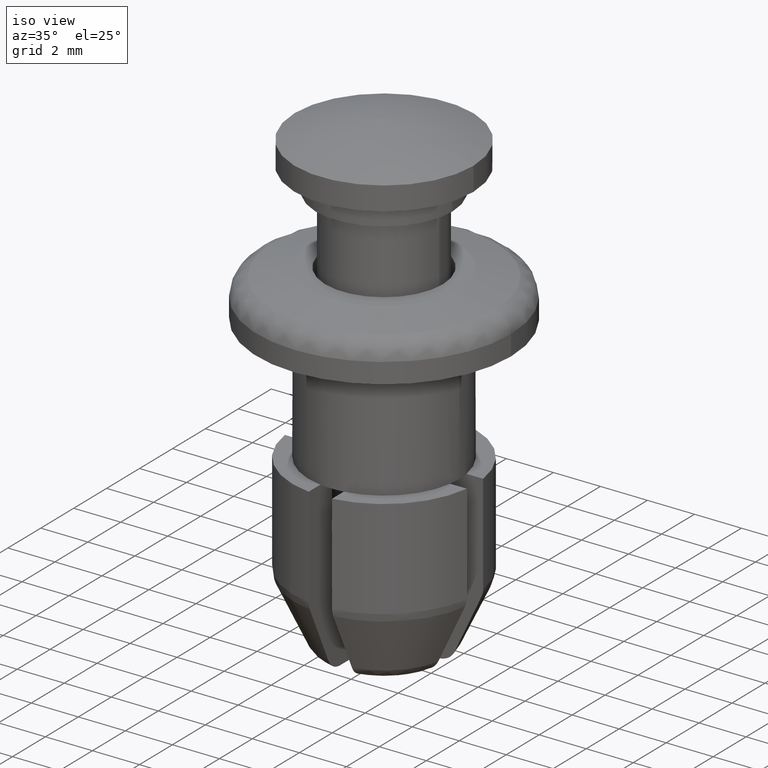
[diagram: clean part render]
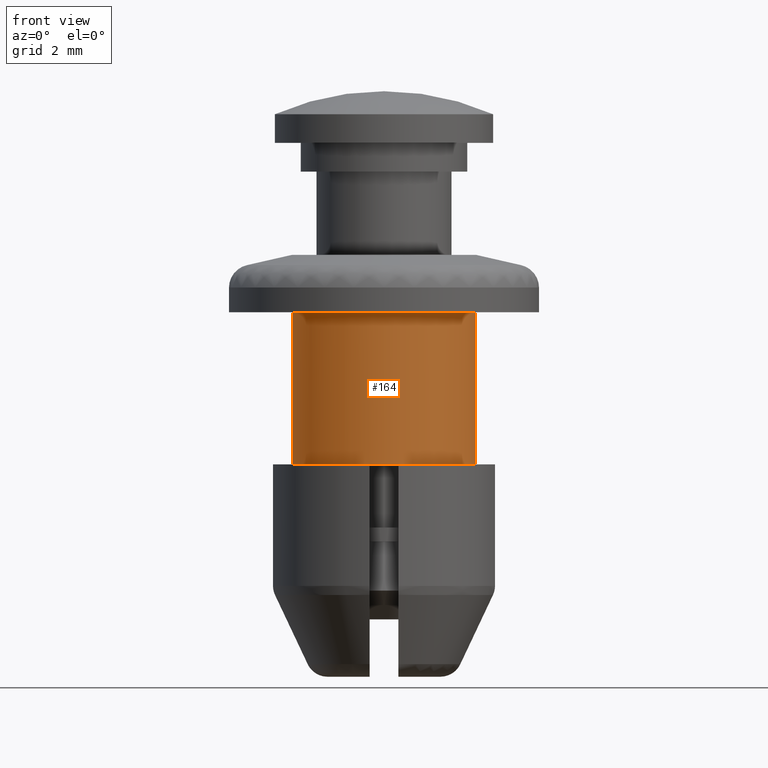
[diagram: tour spotlight — one face highlighted and labeled with its STEP entity id]
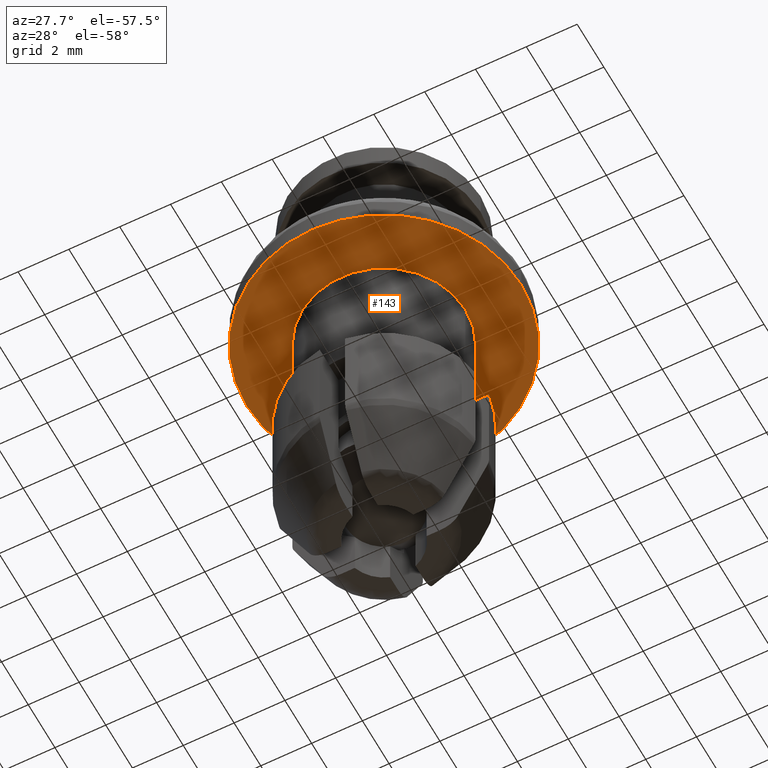
[diagram: tour spotlight — one face highlighted and labeled with its STEP entity id]
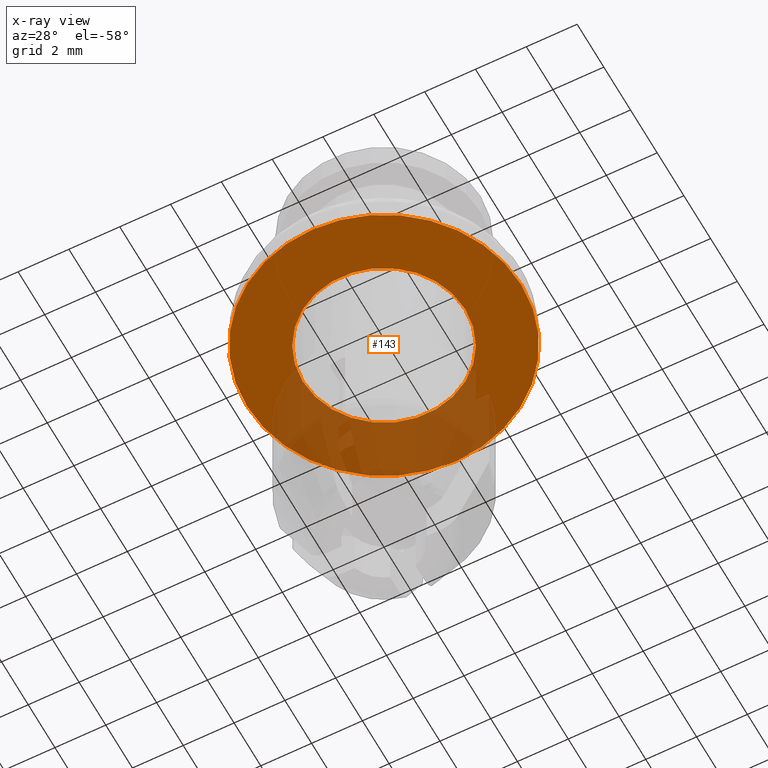
[diagram: x-ray of the same camera — body ghosted, this tour face saturated]
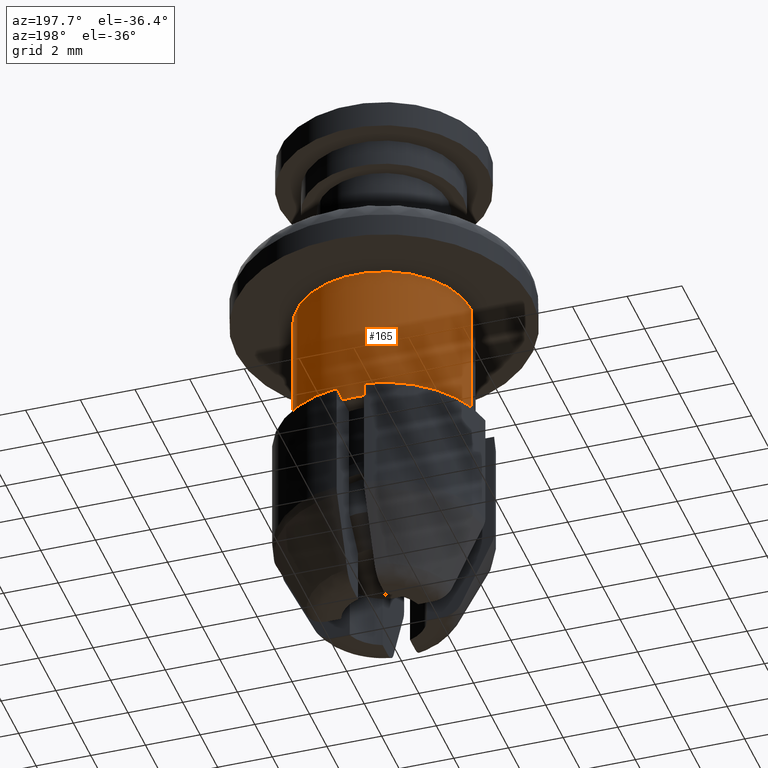
[diagram: tour spotlight — one face highlighted and labeled with its STEP entity id]
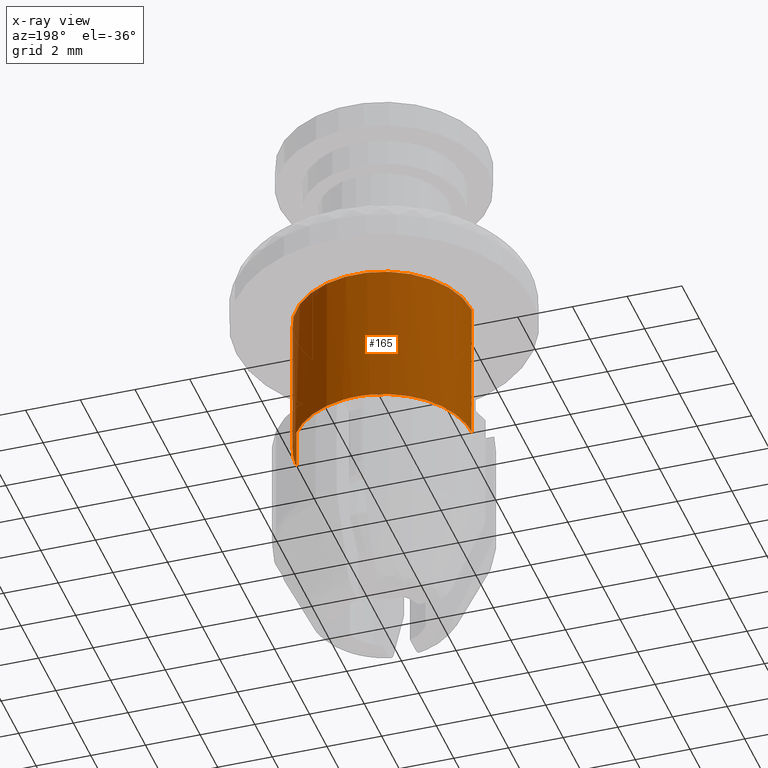
[diagram: x-ray of the same camera — body ghosted, this tour face saturated]
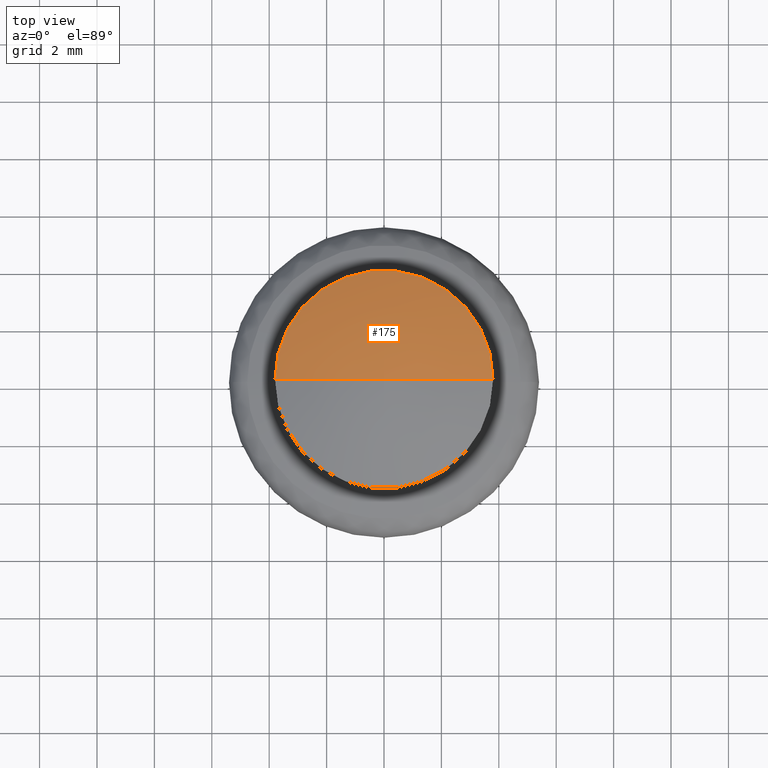
[diagram: tour spotlight — one face highlighted and labeled with its STEP entity id]
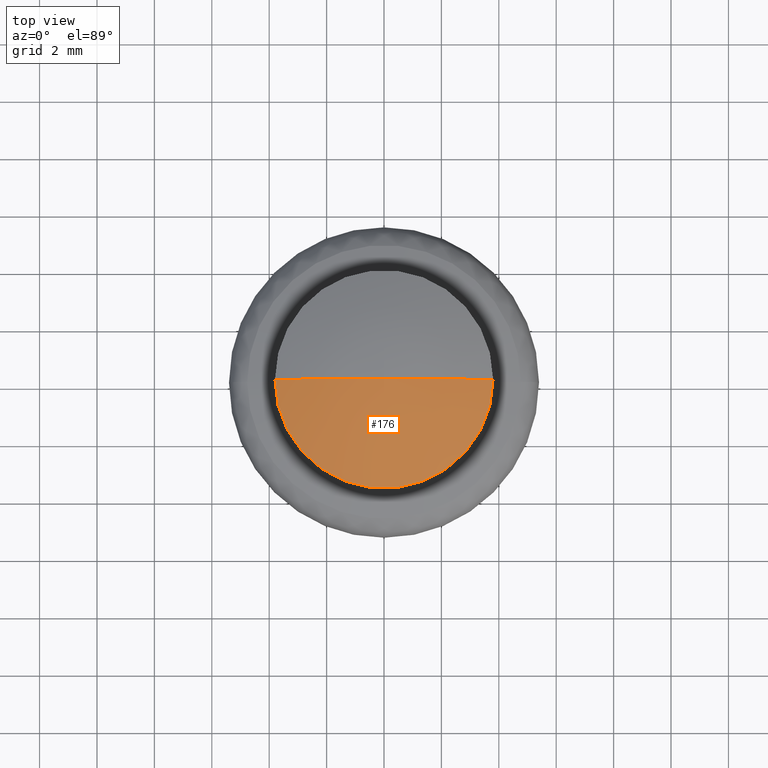
[diagram: tour spotlight — one face highlighted and labeled with its STEP entity id]
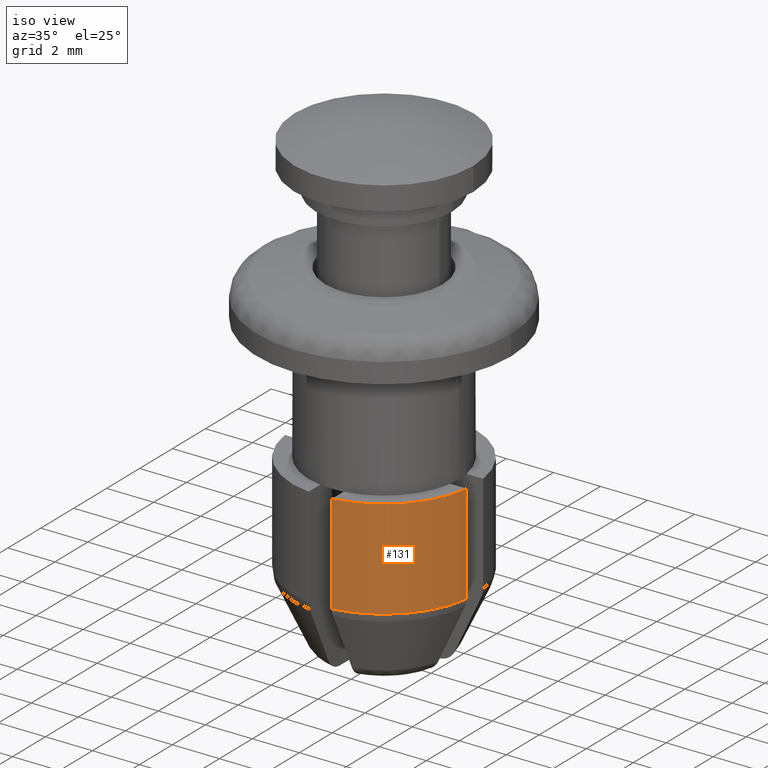
[diagram: tour spotlight — one face highlighted and labeled with its STEP entity id]
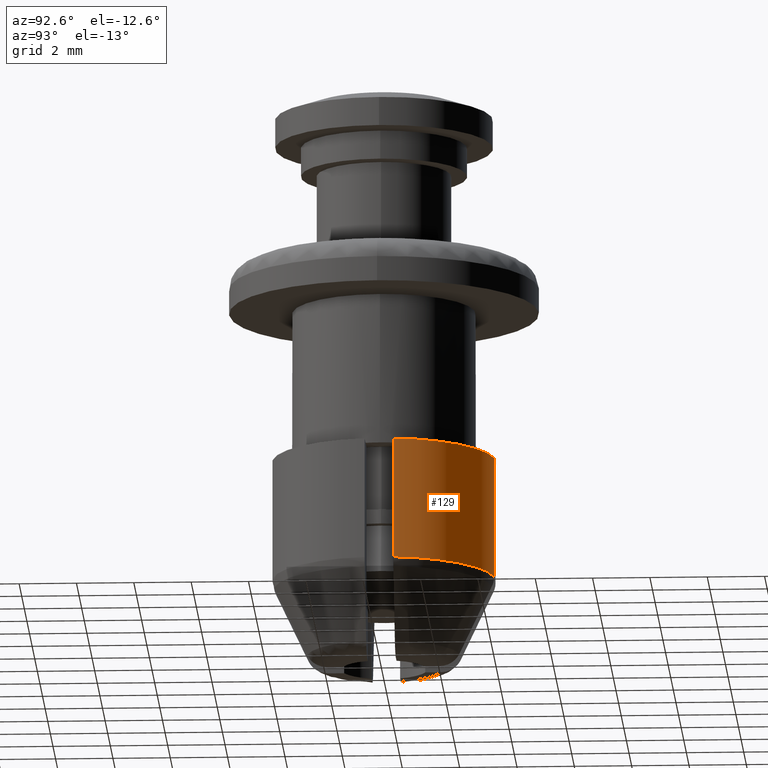
[diagram: tour spotlight — one face highlighted and labeled with its STEP entity id]
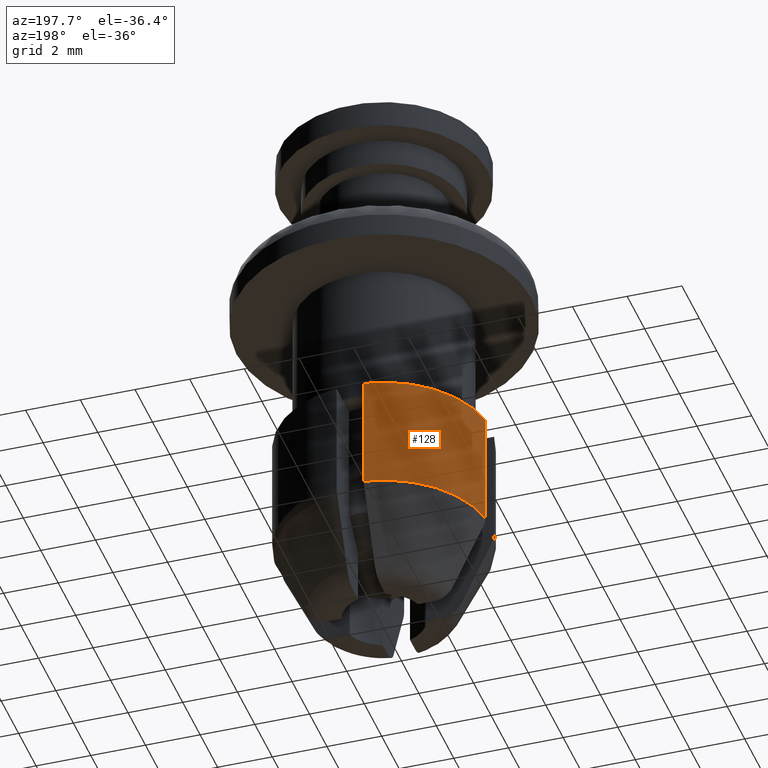
[diagram: tour spotlight — one face highlighted and labeled with its STEP entity id]
A machine part: a face-by-face anatomy tour. The part has 79 B-rep faces; the first image is the clean iso view, then the 8 largest visible faces are spotlighted one at a time (largest first), each with its STEP entity span.

Face 1 — front view, entity #164. In plain terms, the highlighted cylindrical surface (partial cylindrical patch) has radius 3.2 mm, axis along (-0, -0, -1).
Definition (entity closure, byte-faithful):
#164=ADVANCED_FACE('',(#714),#713,.T.);
#713=CYLINDRICAL_SURFACE('',#1386,3.20000000000E+00);
#714=FACE_OUTER_BOUND('',#1387,.T.);
#1383=CARTESIAN_POINT('',(-1.97215226305E-31,0.00000000000E+00,-1.00200000000E+03));
#1384=DIRECTION('',(-0.00000000000E+00,-0.00000000000E+00,-1.00000000000E+00));
#1385=DIRECTION('',(1.00000000000E+00,1.22464679915E-16,0.00000000000E+00));
#1386=AXIS2_PLACEMENT_3D('',#1383,#1384,#1385);
#1387=EDGE_LOOP('',(#1834,#1835,#1836,#1837,#1838,#1839,#1840,#1841));
#1834=ORIENTED_EDGE('',*,*,#2072,.T.);
#1835=ORIENTED_EDGE('',*,*,#1988,.T.);
#1836=ORIENTED_EDGE('',*,*,#2067,.T.);
#1837=ORIENTED_EDGE('',*,*,#2003,.T.);
#1838=ORIENTED_EDGE('',*,*,#2058,.T.);
#1839=ORIENTED_EDGE('',*,*,#2092,.F.);
#1840=ORIENTED_EDGE('',*,*,#2046,.F.);
#1841=ORIENTED_EDGE('',*,*,#2093,.T.);
#1988=EDGE_CURVE('',#2148,#2279,#2428,.T.);
#2003=EDGE_CURVE('',#2532,#2525,#2533,.T.);
#2046=EDGE_CURVE('',#2816,#2817,#2818,.T.);
#2058=EDGE_CURVE('',#2525,#2889,#2896,.T.);
#2067=EDGE_CURVE('',#2279,#2532,#2953,.T.);
#2072=EDGE_CURVE('',#2985,#2148,#2986,.T.);
#2092=EDGE_CURVE('',#2817,#2889,#3112,.T.);
#2093=EDGE_CURVE('',#2816,#2985,#3118,.T.);
#2148=VERTEX_POINT('',#3432);
#2279=VERTEX_POINT('',#3526);
#2428=CIRCLE('',#3628,3.20000000000E+00);
#2525=VERTEX_POINT('',#3688);
#2532=VERTEX_POINT('',#3692);
#2533=CIRCLE('',#3696,3.20000000000E+00);
#2816=VERTEX_POINT('',#3907);
#2817=VERTEX_POINT('',#3908);
#2818=CIRCLE('',#3912,3.20000000000E+00);
#2889=VERTEX_POINT('',#3951);
#2896=CIRCLE('',#3959,3.20000000000E+00);
#2953=CIRCLE('',#3994,3.20000000000E+00);
#2985=VERTEX_POINT('',#4011);
#2986=CIRCLE('',#4015,3.20000000000E+00);
#3112=(BOUNDED_CURVE() B_SPLINE_CURVE(1,(#4083,#4084),.UNSPECIFIED.,.F.,.F.) B_SPLINE_CURVE_WITH_KNOTS((2,2),(8.33333283663E-02,9.16666663731E-01),.UNSPECIFIED.) CURVE() GEOMETRIC_REPRESENTATION_ITEM() RATIONAL_B_SPLINE_CURVE((1.00000000000E+00,1.00000000000E+00)) REPRESENTATION_ITEM('') );
#3118=(BOUNDED_CURVE() B_SPLINE_CURVE(1,(#4085,#4086),.UNSPECIFIED.,.F.,.F.) B_SPLINE_CURVE_WITH_KNOTS((2,2),(8.33333333333E-02,9.16666666667E-01),.UNSPECIFIED.) CURVE() GEOMETRIC_REPRESENTATION_ITEM() RATIONAL_B_SPLINE_CURVE((7.50000000000E-01,7.50000000000E-01)) REPRESENTATION_ITEM('') );
#3432=CARTESIAN_POINT('',(-3.16069612586E+00,-5.00000000000E-01,-7.30000000000E+00));
#3526=CARTESIAN_POINT('',(-5.00000000000E-01,-3.16069612586E+00,-7.30000000000E+00));
#3625=CARTESIAN_POINT('',(-1.97215226305E-31,0.00000000000E+00,-7.30000000000E+00));
#3626=DIRECTION('',(0.00000000000E+00,-0.00000000000E+00,1.00000000000E+00));
#3627=DIRECTION('',(1.00000000000E+00,-0.00000000000E+00,-0.00000000000E+00));
#3628=AXIS2_PLACEMENT_3D('',#3625,#3626,#3627);
#3688=CARTESIAN_POINT('',(3.16069612586E+00,-5.00000000000E-01,-7.30000000000E+00));
#3692=CARTESIAN_POINT('',(5.00000000000E-01,-3.16069612586E+00,-7.30000000000E+00));
#3693=CARTESIAN_POINT('',(-1.97215226305E-31,0.00000000000E+00,-7.30000000000E+00));
#3694=DIRECTION('',(0.00000000000E+00,-0.00000000000E+00,1.00000000000E+00));
#3695=DIRECTION('',(1.00000000000E+00,-0.00000000000E+00,-0.00000000000E+00));
#3696=AXIS2_PLACEMENT_3D('',#3693,#3694,#3695);
#3907=CARTESIAN_POINT('',(-3.20000000000E+00,0.00000000000E+00,-2.00000000000E+00));
#3908=CARTESIAN_POINT('',(3.20000000000E+00,4.44089209850E-16,-2.00000000000E+00));
#3909=CARTESIAN_POINT('',(-1.97215226305E-31,0.00000000000E+00,-2.00000000000E+00));
#3910=DIRECTION('',(0.00000000000E+00,0.00000000000E+00,1.00000000000E+00));
#3911=DIRECTION('',(-1.00000000000E+00,-1.22460635382E-16,0.00000000000E+00));
#3912=AXIS2_PLACEMENT_3D('',#3909,#3910,#3911);
#3951=CARTESIAN_POINT('',(3.20000000000E+00,5.64127061660E-15,-7.30000000000E+00));
#3956=CARTESIAN_POINT('',(-1.97215226305E-31,0.00000000000E+00,-7.30000000000E+00));
#3957=DIRECTION('',(-0.00000000000E+00,0.00000000000E+00,1.00000000000E+00));
#3958=DIRECTION('',(9.87717539330E-01,1.56250000000E-01,0.00000000000E+00));
#3959=AXIS2_PLACEMENT_3D('',#3956,#3957,#3958);
#3991=CARTESIAN_POINT('',(-1.97215226305E-31,0.00000000000E+00,-7.30000000000E+00));
#3992=DIRECTION('',(0.00000000000E+00,-0.00000000000E+00,1.00000000000E+00));
#3993=DIRECTION('',(1.00000000000E+00,-0.00000000000E+00,-0.00000000000E+00));
#3994=AXIS2_PLACEMENT_3D('',#3991,#3992,#3993);
#4011=CARTESIAN_POINT('',(-3.20000000000E+00,3.19635721834E-06,-7.30000000000E+00));
#4012=CARTESIAN_POINT('',(-1.97215226305E-31,0.00000000000E+00,-7.30000000000E+00));
#4013=DIRECTION('',(0.00000000000E+00,-0.00000000000E+00,1.00000000000E+00));
#4014=DIRECTION('',(1.00000000000E+00,-0.00000000000E+00,-0.00000000000E+00));
#4015=AXIS2_PLACEMENT_3D('',#4012,#4013,#4014);
#4083=CARTESIAN_POINT('',(3.20000000000E+00,3.91886975727E-16,-1.99999996841E+00));
#4084=CARTESIAN_POINT('',(3.20000000000E+00,3.91886975727E-16,-7.29999998133E+00));
#4085=CARTESIAN_POINT('',(-3.20000000000E+00,-2.96059473233E-16,-2.00000000000E+00));
#4086=CARTESIAN_POINT('',(-3.20000000000E+00,-2.96059473233E-16,-7.30000000000E+00));

Face 2 — auxiliary view, entity #143. An x-ray twin of the same camera follows (body ghosted, this face saturated) — the face is partly hidden behind the body. In plain terms, the highlighted planar face has unit normal (0, 0, 1).
Definition (entity closure, byte-faithful):
#143=ADVANCED_FACE('',(#503,#504),#502,.F.);
#502=PLANE('',#1224);
#503=FACE_OUTER_BOUND('',#1225,.T.);
#504=FACE_BOUND('',#1226,.T.);
#1221=CARTESIAN_POINT('',(-7.02000000000E+00,-1.12236892330E+01,-2.00000000000E+00));
#1222=DIRECTION('',(0.00000000000E+00,0.00000000000E+00,1.00000000000E+00));
#1223=DIRECTION('',(1.00000000000E+00,0.00000000000E+00,0.00000000000E+00));
#1224=AXIS2_PLACEMENT_3D('',#1221,#1222,#1223);
#1225=EDGE_LOOP('',(#1694,#1695));
#1226=EDGE_LOOP('',(#1696,#1697));
#1694=ORIENTED_EDGE('',*,*,#2044,.T.);
#1695=ORIENTED_EDGE('',*,*,#2045,.T.);
#1696=ORIENTED_EDGE('',*,*,#2046,.T.);
#1697=ORIENTED_EDGE('',*,*,#2047,.T.);
#2044=EDGE_CURVE('',#2802,#2803,#2804,.T.);
#2045=EDGE_CURVE('',#2803,#2802,#2810,.T.);
#2046=EDGE_CURVE('',#2816,#2817,#2818,.T.);
#2047=EDGE_CURVE('',#2817,#2816,#2824,.T.);
#2802=VERTEX_POINT('',#3897);
#2803=VERTEX_POINT('',#3898);
#2804=CIRCLE('',#3902,5.40000000000E+00);
#2810=CIRCLE('',#3906,5.40000000000E+00);
#2816=VERTEX_POINT('',#3907);
#2817=VERTEX_POINT('',#3908);
#2818=CIRCLE('',#3912,3.20000000000E+00);
#2824=CIRCLE('',#3916,3.20000000000E+00);
#3897=CARTESIAN_POINT('',(-5.40000000000E+00,0.00000000000E+00,-2.00000000000E+00));
#3898=CARTESIAN_POINT('',(5.40000000000E+00,2.96059473233E-16,-2.00000000000E+00));
#3899=CARTESIAN_POINT('',(0.00000000000E+00,0.00000000000E+00,-2.00000000000E+00));
#3900=DIRECTION('',(-0.00000000000E+00,0.00000000000E+00,-1.00000000000E+00));
#3901=DIRECTION('',(-1.00000000000E+00,-1.22460635382E-16,0.00000000000E+00));
#3902=AXIS2_PLACEMENT_3D('',#3899,#3900,#3901);
#3903=CARTESIAN_POINT('',(0.00000000000E+00,0.00000000000E+00,-2.00000000000E+00));
#3904=DIRECTION('',(-0.00000000000E+00,0.00000000000E+00,-1.00000000000E+00));
#3905=DIRECTION('',(-1.00000000000E+00,-1.22460635382E-16,0.00000000000E+00));
#3906=AXIS2_PLACEMENT_3D('',#3903,#3904,#3905);
#3907=CARTESIAN_POINT('',(-3.20000000000E+00,0.00000000000E+00,-2.00000000000E+00));
#3908=CARTESIAN_POINT('',(3.20000000000E+00,4.44089209850E-16,-2.00000000000E+00));
#3909=CARTESIAN_POINT('',(-1.97215226305E-31,0.00000000000E+00,-2.00000000000E+00));
#3910=DIRECTION('',(0.00000000000E+00,0.00000000000E+00,1.00000000000E+00));
#3911=DIRECTION('',(-1.00000000000E+00,-1.22460635382E-16,0.00000000000E+00));
#3912=AXIS2_PLACEMENT_3D('',#3909,#3910,#3911);
#3913=CARTESIAN_POINT('',(-1.97215226305E-31,0.00000000000E+00,-2.00000000000E+00));
#3914=DIRECTION('',(0.00000000000E+00,0.00000000000E+00,1.00000000000E+00));
#3915=DIRECTION('',(-1.00000000000E+00,-1.22460635382E-16,0.00000000000E+00));
#3916=AXIS2_PLACEMENT_3D('',#3913,#3914,#3915);

Face 3 — auxiliary view, entity #165. An x-ray twin of the same camera follows (body ghosted, this face saturated) — the face is partly hidden behind the body. In plain terms, the highlighted cylindrical surface (partial cylindrical patch) has radius 3.2 mm, axis along (-0, -0, -1).
Definition (entity closure, byte-faithful):
#165=ADVANCED_FACE('',(#724),#723,.T.);
#723=CYLINDRICAL_SURFACE('',#1391,3.20000000000E+00);
#724=FACE_OUTER_BOUND('',#1392,.T.);
#1388=CARTESIAN_POINT('',(-1.97215226305E-31,0.00000000000E+00,-1.00200000000E+03));
#1389=DIRECTION('',(-0.00000000000E+00,-0.00000000000E+00,-1.00000000000E+00));
#1390=DIRECTION('',(1.00000000000E+00,1.22464679915E-16,0.00000000000E+00));
#1391=AXIS2_PLACEMENT_3D('',#1388,#1389,#1390);
#1392=EDGE_LOOP('',(#1842,#1843,#1844,#1845,#1846,#1847,#1848,#1849));
#1842=ORIENTED_EDGE('',*,*,#2047,.F.);
#1843=ORIENTED_EDGE('',*,*,#2092,.T.);
#1844=ORIENTED_EDGE('',*,*,#2057,.T.);
#1845=ORIENTED_EDGE('',*,*,#2000,.T.);
#1846=ORIENTED_EDGE('',*,*,#2065,.T.);
#1847=ORIENTED_EDGE('',*,*,#1994,.T.);
#1848=ORIENTED_EDGE('',*,*,#2073,.T.);
#1849=ORIENTED_EDGE('',*,*,#2093,.F.);
#1994=EDGE_CURVE('',#2470,#2463,#2471,.T.);
#2000=EDGE_CURVE('',#2490,#2505,#2512,.T.);
#2047=EDGE_CURVE('',#2817,#2816,#2824,.T.);
#2057=EDGE_CURVE('',#2889,#2490,#2890,.T.);
#2065=EDGE_CURVE('',#2505,#2470,#2941,.T.);
#2073=EDGE_CURVE('',#2463,#2985,#2992,.T.);
#2092=EDGE_CURVE('',#2817,#2889,#3112,.T.);
#2093=EDGE_CURVE('',#2816,#2985,#3118,.T.);
#2463=VERTEX_POINT('',#3648);
#2470=VERTEX_POINT('',#3652);
#2471=CIRCLE('',#3656,3.20000000000E+00);
#2490=VERTEX_POINT('',#3665);
#2505=VERTEX_POINT('',#3675);
#2512=CIRCLE('',#3682,3.20000000000E+00);
#2816=VERTEX_POINT('',#3907);
#2817=VERTEX_POINT('',#3908);
#2824=CIRCLE('',#3916,3.20000000000E+00);
#2889=VERTEX_POINT('',#3951);
#2890=CIRCLE('',#3955,3.20000000000E+00);
#2941=CIRCLE('',#3986,3.20000000000E+00);
#2985=VERTEX_POINT('',#4011);
#2992=CIRCLE('',#4019,3.20000000000E+00);
#3112=(BOUNDED_CURVE() B_SPLINE_CURVE(1,(#4083,#4084),.UNSPECIFIED.,.F.,.F.) B_SPLINE_CURVE_WITH_KNOTS((2,2),(8.33333283663E-02,9.16666663731E-01),.UNSPECIFIED.) CURVE() GEOMETRIC_REPRESENTATION_ITEM() RATIONAL_B_SPLINE_CURVE((1.00000000000E+00,1.00000000000E+00)) REPRESENTATION_ITEM('') );
#3118=(BOUNDED_CURVE() B_SPLINE_CURVE(1,(#4085,#4086),.UNSPECIFIED.,.F.,.F.) B_SPLINE_CURVE_WITH_KNOTS((2,2),(8.33333333333E-02,9.16666666667E-01),.UNSPECIFIED.) CURVE() GEOMETRIC_REPRESENTATION_ITEM() RATIONAL_B_SPLINE_CURVE((7.50000000000E-01,7.50000000000E-01)) REPRESENTATION_ITEM('') );
#3648=CARTESIAN_POINT('',(-3.16069612586E+00,5.00000000000E-01,-7.30000000000E+00));
#3652=CARTESIAN_POINT('',(-5.00000000000E-01,3.16069612586E+00,-7.30000000000E+00));
#3653=CARTESIAN_POINT('',(-1.97215226305E-31,0.00000000000E+00,-7.30000000000E+00));
#3654=DIRECTION('',(0.00000000000E+00,-0.00000000000E+00,1.00000000000E+00));
#3655=DIRECTION('',(1.00000000000E+00,-0.00000000000E+00,-0.00000000000E+00));
#3656=AXIS2_PLACEMENT_3D('',#3653,#3654,#3655);
#3665=CARTESIAN_POINT('',(3.16069612586E+00,5.00000000000E-01,-7.30000000000E+00));
#3675=CARTESIAN_POINT('',(5.00000000000E-01,3.16069612586E+00,-7.30000000000E+00));
#3679=CARTESIAN_POINT('',(-1.97215226305E-31,0.00000000000E+00,-7.30000000000E+00));
#3680=DIRECTION('',(0.00000000000E+00,-0.00000000000E+00,1.00000000000E+00));
#3681=DIRECTION('',(1.00000000000E+00,-0.00000000000E+00,-0.00000000000E+00));
#3682=AXIS2_PLACEMENT_3D('',#3679,#3680,#3681);
#3907=CARTESIAN_POINT('',(-3.20000000000E+00,0.00000000000E+00,-2.00000000000E+00));
#3908=CARTESIAN_POINT('',(3.20000000000E+00,4.44089209850E-16,-2.00000000000E+00));
#3913=CARTESIAN_POINT('',(-1.97215226305E-31,0.00000000000E+00,-2.00000000000E+00));
#3914=DIRECTION('',(0.00000000000E+00,0.00000000000E+00,1.00000000000E+00));
#3915=DIRECTION('',(-1.00000000000E+00,-1.22460635382E-16,0.00000000000E+00));
#3916=AXIS2_PLACEMENT_3D('',#3913,#3914,#3915);
#3951=CARTESIAN_POINT('',(3.20000000000E+00,5.64127061660E-15,-7.30000000000E+00));
#3952=CARTESIAN_POINT('',(-1.97215226305E-31,0.00000000000E+00,-7.30000000000E+00));
#3953=DIRECTION('',(-0.00000000000E+00,0.00000000000E+00,1.00000000000E+00));
#3954=DIRECTION('',(9.87717539330E-01,1.56250000000E-01,0.00000000000E+00));
#3955=AXIS2_PLACEMENT_3D('',#3952,#3953,#3954);
#3983=CARTESIAN_POINT('',(-1.97215226305E-31,0.00000000000E+00,-7.30000000000E+00));
#3984=DIRECTION('',(-0.00000000000E+00,0.00000000000E+00,1.00000000000E+00));
#3985=DIRECTION('',(-1.00000000000E+00,-0.00000000000E+00,-0.00000000000E+00));
#3986=AXIS2_PLACEMENT_3D('',#3983,#3984,#3985);
#4011=CARTESIAN_POINT('',(-3.20000000000E+00,3.19635721834E-06,-7.30000000000E+00));
#4016=CARTESIAN_POINT('',(-1.97215226305E-31,0.00000000000E+00,-7.30000000000E+00));
#4017=DIRECTION('',(0.00000000000E+00,-0.00000000000E+00,1.00000000000E+00));
#4018=DIRECTION('',(1.00000000000E+00,-0.00000000000E+00,-0.00000000000E+00));
#4019=AXIS2_PLACEMENT_3D('',#4016,#4017,#4018);
#4083=CARTESIAN_POINT('',(3.20000000000E+00,3.91886975727E-16,-1.99999996841E+00));
#4084=CARTESIAN_POINT('',(3.20000000000E+00,3.91886975727E-16,-7.29999998133E+00));
#4085=CARTESIAN_POINT('',(-3.20000000000E+00,-2.96059473233E-16,-2.00000000000E+00));
#4086=CARTESIAN_POINT('',(-3.20000000000E+00,-2.96059473233E-16,-7.30000000000E+00));

Face 4 — top view, entity #175. In plain terms, the highlighted spherical surface has radius 9.425 mm.
Definition (entity closure, byte-faithful):
#175=ADVANCED_FACE('',(#828),#827,.T.);
#827=SPHERICAL_SURFACE('',#1445,9.42500000000E+00);
#828=FACE_OUTER_BOUND('',#1446,.T.);
#1442=CARTESIAN_POINT('',(0.00000000000E+00,0.00000000000E+00,-6.62500000000E+00));
#1443=DIRECTION('',(0.00000000000E+00,0.00000000000E+00,-1.00000000000E+00));
#1444=DIRECTION('',(-1.00000000000E+00,1.22460635382E-16,-0.00000000000E+00));
#1445=AXIS2_PLACEMENT_3D('',#1442,#1443,#1444);
#1446=EDGE_LOOP('',(#1884,#1885,#1886));
#1884=ORIENTED_EDGE('',*,*,#2114,.F.);
#1885=ORIENTED_EDGE('',*,*,#2118,.F.);
#1886=ORIENTED_EDGE('',*,*,#2119,.T.);
#2114=EDGE_CURVE('',#3262,#3263,#3264,.T.);
#2118=EDGE_CURVE('',#3288,#3262,#3289,.T.);
#2119=EDGE_CURVE('',#3288,#3263,#3295,.T.);
#3262=VERTEX_POINT('',#4181);
#3263=VERTEX_POINT('',#4182);
#3264=CIRCLE('',#4186,3.79999757951E+00);
#3288=VERTEX_POINT('',#4195);
#3289=(BOUNDED_CURVE() B_SPLINE_CURVE(2,(#4196,#4197,#4198),.UNSPECIFIED.,.F.,.F.) B_SPLINE_CURVE_WITH_KNOTS((3,3),(0.00000000000E+00,9.99999235073E-01),.UNSPECIFIED.) CURVE() GEOMETRIC_REPRESENTATION_ITEM() RATIONAL_B_SPLINE_CURVE((1.00000000000E+00,9.78549781061E-01,1.00000000000E+00)) REPRESENTATION_ITEM('') );
#3295=(BOUNDED_CURVE() B_SPLINE_CURVE(2,(#4199,#4200,#4201),.UNSPECIFIED.,.F.,.F.) B_SPLINE_CURVE_WITH_KNOTS((3,3),(0.00000000000E+00,1.00000000000E+00),.UNSPECIFIED.) CURVE() GEOMETRIC_REPRESENTATION_ITEM() RATIONAL_B_SPLINE_CURVE((7.50000000000E-01,7.33912335796E-01,7.50000000000E-01)) REPRESENTATION_ITEM('') );
#4181=CARTESIAN_POINT('',(-3.79999757951E+00,0.00000000000E+00,2.00000106642E+00));
#4182=CARTESIAN_POINT('',(3.79999757951E+00,2.96059473233E-16,2.00000106642E+00));
#4183=CARTESIAN_POINT('',(0.00000000000E+00,0.00000000000E+00,2.00000106642E+00));
#4184=DIRECTION('',(-0.00000000000E+00,0.00000000000E+00,-1.00000000000E+00));
#4185=DIRECTION('',(-1.00000000000E+00,-1.22460635382E-16,0.00000000000E+00));
#4186=AXIS2_PLACEMENT_3D('',#4183,#4184,#4185);
#4195=CARTESIAN_POINT('',(-5.77095744239E-16,7.06715115159E-32,2.80000000000E+00));
#4196=CARTESIAN_POINT('',(-5.77095744239E-16,7.06715115159E-32,2.80000000000E+00));
#4197=CARTESIAN_POINT('',(-1.98421071388E+00,2.42987704754E-16,2.80000000000E+00));
#4198=CARTESIAN_POINT('',(-3.80000032872E+00,4.65350454707E-16,1.99999985517E+00));
#4199=CARTESIAN_POINT('',(5.77095744239E-16,-6.57384087684E-32,2.80000000000E+00));
#4200=CARTESIAN_POINT('',(1.98421071388E+00,-4.53823830371E-16,2.80000000000E+00));
#4201=CARTESIAN_POINT('',(3.80000032872E+00,-5.92118946467E-16,1.99999985517E+00));

Face 5 — top view, entity #176. In plain terms, the highlighted spherical surface has radius 9.425 mm.
Definition (entity closure, byte-faithful):
#176=ADVANCED_FACE('',(#838),#837,.T.);
#837=SPHERICAL_SURFACE('',#1450,9.42500000000E+00);
#838=FACE_OUTER_BOUND('',#1451,.T.);
#1447=CARTESIAN_POINT('',(0.00000000000E+00,0.00000000000E+00,-6.62500000000E+00));
#1448=DIRECTION('',(0.00000000000E+00,0.00000000000E+00,-1.00000000000E+00));
#1449=DIRECTION('',(1.00000000000E+00,4.04453249759E-21,0.00000000000E+00));
#1450=AXIS2_PLACEMENT_3D('',#1447,#1448,#1449);
#1451=EDGE_LOOP('',(#1887,#1888,#1889));
#1887=ORIENTED_EDGE('',*,*,#2118,.T.);
#1888=ORIENTED_EDGE('',*,*,#2117,.F.);
#1889=ORIENTED_EDGE('',*,*,#2119,.F.);
#2117=EDGE_CURVE('',#3263,#3262,#3282,.T.);
#2118=EDGE_CURVE('',#3288,#3262,#3289,.T.);
#2119=EDGE_CURVE('',#3288,#3263,#3295,.T.);
#3262=VERTEX_POINT('',#4181);
#3263=VERTEX_POINT('',#4182);
#3282=CIRCLE('',#4194,3.79999757951E+00);
#3288=VERTEX_POINT('',#4195);
#3289=(BOUNDED_CURVE() B_SPLINE_CURVE(2,(#4196,#4197,#4198),.UNSPECIFIED.,.F.,.F.) B_SPLINE_CURVE_WITH_KNOTS((3,3),(0.00000000000E+00,9.99999235073E-01),.UNSPECIFIED.) CURVE() GEOMETRIC_REPRESENTATION_ITEM() RATIONAL_B_SPLINE_CURVE((1.00000000000E+00,9.78549781061E-01,1.00000000000E+00)) REPRESENTATION_ITEM('') );
#3295=(BOUNDED_CURVE() B_SPLINE_CURVE(2,(#4199,#4200,#4201),.UNSPECIFIED.,.F.,.F.) B_SPLINE_CURVE_WITH_KNOTS((3,3),(0.00000000000E+00,1.00000000000E+00),.UNSPECIFIED.) CURVE() GEOMETRIC_REPRESENTATION_ITEM() RATIONAL_B_SPLINE_CURVE((7.50000000000E-01,7.33912335796E-01,7.50000000000E-01)) REPRESENTATION_ITEM('') );
#4181=CARTESIAN_POINT('',(-3.79999757951E+00,0.00000000000E+00,2.00000106642E+00));
#4182=CARTESIAN_POINT('',(3.79999757951E+00,2.96059473233E-16,2.00000106642E+00));
#4191=CARTESIAN_POINT('',(0.00000000000E+00,0.00000000000E+00,2.00000106642E+00));
#4192=DIRECTION('',(-0.00000000000E+00,0.00000000000E+00,-1.00000000000E+00));
#4193=DIRECTION('',(-1.00000000000E+00,-1.22460635382E-16,0.00000000000E+00));
#4194=AXIS2_PLACEMENT_3D('',#4191,#4192,#4193);
#4195=CARTESIAN_POINT('',(-5.77095744239E-16,7.06715115159E-32,2.80000000000E+00));
#4196=CARTESIAN_POINT('',(-5.77095744239E-16,7.06715115159E-32,2.80000000000E+00));
#4197=CARTESIAN_POINT('',(-1.98421071388E+00,2.42987704754E-16,2.80000000000E+00));
#4198=CARTESIAN_POINT('',(-3.80000032872E+00,4.65350454707E-16,1.99999985517E+00));
#4199=CARTESIAN_POINT('',(5.77095744239E-16,-6.57384087684E-32,2.80000000000E+00));
#4200=CARTESIAN_POINT('',(1.98421071388E+00,-4.53823830371E-16,2.80000000000E+00));
#4201=CARTESIAN_POINT('',(3.80000032872E+00,-5.92118946467E-16,1.99999985517E+00));

Face 6 — iso view, entity #131. In plain terms, the highlighted cylindrical surface (partial cylindrical patch) has radius 3.9 mm, axis along (0, 0, 1).
Definition (entity closure, byte-faithful):
#131=ADVANCED_FACE('',(#382),#381,.T.);
#381=CYLINDRICAL_SURFACE('',#1107,3.90000000000E+00);
#382=FACE_OUTER_BOUND('',#1108,.T.);
#1104=CARTESIAN_POINT('',(0.00000000000E+00,0.00000000000E+00,0.00000000000E+00));
#1105=DIRECTION('',(-0.00000000000E+00,-0.00000000000E+00,1.00000000000E+00));
#1106=DIRECTION('',(1.00000000000E+00,-0.00000000000E+00,-0.00000000000E+00));
#1107=AXIS2_PLACEMENT_3D('',#1104,#1105,#1106);
#1108=EDGE_LOOP('',(#1646,#1647,#1648,#1649));
#1646=ORIENTED_EDGE('',*,*,#2013,.F.);
#1647=ORIENTED_EDGE('',*,*,#2005,.T.);
#1648=ORIENTED_EDGE('',*,*,#2014,.F.);
#1649=ORIENTED_EDGE('',*,*,#2015,.F.);
#2005=EDGE_CURVE('',#2524,#2539,#2546,.T.);
#2013=EDGE_CURVE('',#2524,#2598,#2599,.T.);
#2014=EDGE_CURVE('',#2605,#2539,#2606,.T.);
#2015=EDGE_CURVE('',#2598,#2605,#2612,.T.);
#2524=VERTEX_POINT('',#3687);
#2539=VERTEX_POINT('',#3697);
#2546=CIRCLE('',#3704,3.90000000000E+00);
#2598=VERTEX_POINT('',#3733);
#2599=LINE('',#3734,#3735);
#2605=VERTEX_POINT('',#3737);
#2606=LINE('',#3738,#3739);
#2612=CIRCLE('',#3744,3.90000000000E+00);
#3687=CARTESIAN_POINT('',(3.86781592116E+00,-5.00000000000E-01,-7.30000000000E+00));
#3697=CARTESIAN_POINT('',(5.00000000000E-01,-3.86781592116E+00,-7.30000000000E+00));
#3701=CARTESIAN_POINT('',(0.00000000000E+00,0.00000000000E+00,-7.30000000000E+00));
#3702=DIRECTION('',(0.00000000000E+00,0.00000000000E+00,-1.00000000000E+00));
#3703=DIRECTION('',(1.00000000000E+00,-0.00000000000E+00,-0.00000000000E+00));
#3704=AXIS2_PLACEMENT_3D('',#3701,#3702,#3703);
#3733=CARTESIAN_POINT('',(3.86781592116E+00,-5.00000000000E-01,-1.15339000000E+01));
#3734=CARTESIAN_POINT('',(3.86781592116E+00,-5.00000000000E-01,-7.30000000000E+00));
#3735=VECTOR('',#3736,4.23390000000E+00);
#3736=DIRECTION('',(0.00000000000E+00,0.00000000000E+00,-1.00000000000E+00));
#3737=CARTESIAN_POINT('',(5.00000000000E-01,-3.86781592116E+00,-1.15339000000E+01));
#3738=CARTESIAN_POINT('',(5.00000000000E-01,-3.86781592116E+00,-1.15339000000E+01));
#3739=VECTOR('',#3740,4.23390000000E+00);
#3740=DIRECTION('',(0.00000000000E+00,0.00000000000E+00,1.00000000000E+00));
#3741=CARTESIAN_POINT('',(0.00000000000E+00,0.00000000000E+00,-1.15339000000E+01));
#3742=DIRECTION('',(0.00000000000E+00,0.00000000000E+00,-1.00000000000E+00));
#3743=DIRECTION('',(1.00000000000E+00,-0.00000000000E+00,-0.00000000000E+00));
#3744=AXIS2_PLACEMENT_3D('',#3741,#3742,#3743);

Face 7 — auxiliary view, entity #129. In plain terms, the highlighted cylindrical surface (partial cylindrical patch) has radius 3.9 mm, axis along (0, 0, 1).
Definition (entity closure, byte-faithful):
#129=ADVANCED_FACE('',(#362),#361,.T.);
#361=CYLINDRICAL_SURFACE('',#1092,3.90000000000E+00);
#362=FACE_OUTER_BOUND('',#1093,.T.);
#1089=CARTESIAN_POINT('',(0.00000000000E+00,0.00000000000E+00,0.00000000000E+00));
#1090=DIRECTION('',(-0.00000000000E+00,-0.00000000000E+00,1.00000000000E+00));
#1091=DIRECTION('',(1.00000000000E+00,-0.00000000000E+00,-0.00000000000E+00));
#1092=AXIS2_PLACEMENT_3D('',#1089,#1090,#1091);
#1093=EDGE_LOOP('',(#1638,#1639,#1640,#1641));
#1638=ORIENTED_EDGE('',*,*,#2009,.F.);
#1639=ORIENTED_EDGE('',*,*,#2010,.F.);
#1640=ORIENTED_EDGE('',*,*,#2011,.F.);
#1641=ORIENTED_EDGE('',*,*,#1998,.T.);
#1998=EDGE_CURVE('',#2498,#2491,#2499,.T.);
#2009=EDGE_CURVE('',#2572,#2491,#2573,.T.);
#2010=EDGE_CURVE('',#2579,#2572,#2580,.T.);
#2011=EDGE_CURVE('',#2498,#2579,#2586,.T.);
#2491=VERTEX_POINT('',#3666);
#2498=VERTEX_POINT('',#3670);
#2499=CIRCLE('',#3674,3.90000000000E+00);
#2572=VERTEX_POINT('',#3717);
#2573=LINE('',#3718,#3719);
#2579=VERTEX_POINT('',#3721);
#2580=CIRCLE('',#3725,3.90000000000E+00);
#2586=LINE('',#3726,#3727);
#3666=CARTESIAN_POINT('',(3.86781592116E+00,5.00000000000E-01,-7.30000000000E+00));
#3670=CARTESIAN_POINT('',(5.00000000000E-01,3.86781592116E+00,-7.30000000000E+00));
#3671=CARTESIAN_POINT('',(0.00000000000E+00,0.00000000000E+00,-7.30000000000E+00));
#3672=DIRECTION('',(0.00000000000E+00,0.00000000000E+00,-1.00000000000E+00));
#3673=DIRECTION('',(1.00000000000E+00,-0.00000000000E+00,-0.00000000000E+00));
#3674=AXIS2_PLACEMENT_3D('',#3671,#3672,#3673);
#3717=CARTESIAN_POINT('',(3.86781592116E+00,5.00000000000E-01,-1.15339000000E+01));
#3718=CARTESIAN_POINT('',(3.86781592116E+00,5.00000000000E-01,-1.15339000000E+01));
#3719=VECTOR('',#3720,4.23390000000E+00);
#3720=DIRECTION('',(0.00000000000E+00,0.00000000000E+00,1.00000000000E+00));
#3721=CARTESIAN_POINT('',(5.00000000000E-01,3.86781592116E+00,-1.15339000000E+01));
#3722=CARTESIAN_POINT('',(0.00000000000E+00,0.00000000000E+00,-1.15339000000E+01));
#3723=DIRECTION('',(0.00000000000E+00,0.00000000000E+00,-1.00000000000E+00));
#3724=DIRECTION('',(1.00000000000E+00,-0.00000000000E+00,-0.00000000000E+00));
#3725=AXIS2_PLACEMENT_3D('',#3722,#3723,#3724);
#3726=CARTESIAN_POINT('',(5.00000000000E-01,3.86781592116E+00,-7.30000000000E+00));
#3727=VECTOR('',#3728,4.23390000000E+00);
#3728=DIRECTION('',(0.00000000000E+00,0.00000000000E+00,-1.00000000000E+00));

Face 8 — auxiliary view, entity #128. In plain terms, the highlighted cylindrical surface (partial cylindrical patch) has radius 3.9 mm, axis along (0, 0, 1).
Definition (entity closure, byte-faithful):
#128=ADVANCED_FACE('',(#352),#351,.T.);
#351=CYLINDRICAL_SURFACE('',#1087,3.90000000000E+00);
#352=FACE_OUTER_BOUND('',#1088,.T.);
#1084=CARTESIAN_POINT('',(0.00000000000E+00,0.00000000000E+00,0.00000000000E+00));
#1085=DIRECTION('',(-0.00000000000E+00,-0.00000000000E+00,1.00000000000E+00));
#1086=DIRECTION('',(1.00000000000E+00,-0.00000000000E+00,-0.00000000000E+00));
#1087=AXIS2_PLACEMENT_3D('',#1084,#1085,#1086);
#1088=EDGE_LOOP('',(#1634,#1635,#1636,#1637));
#1634=ORIENTED_EDGE('',*,*,#2006,.F.);
#1635=ORIENTED_EDGE('',*,*,#1996,.T.);
#1636=ORIENTED_EDGE('',*,*,#2007,.F.);
#1637=ORIENTED_EDGE('',*,*,#2008,.F.);
#1996=EDGE_CURVE('',#2462,#2477,#2484,.T.);
#2006=EDGE_CURVE('',#2462,#2552,#2553,.T.);
#2007=EDGE_CURVE('',#2559,#2477,#2560,.T.);
#2008=EDGE_CURVE('',#2552,#2559,#2566,.T.);
#2462=VERTEX_POINT('',#3647);
#2477=VERTEX_POINT('',#3657);
#2484=CIRCLE('',#3664,3.90000000000E+00);
#2552=VERTEX_POINT('',#3705);
#2553=LINE('',#3706,#3707);
#2559=VERTEX_POINT('',#3709);
#2560=LINE('',#3710,#3711);
#2566=CIRCLE('',#3716,3.90000000000E+00);
#3647=CARTESIAN_POINT('',(-3.86781592116E+00,5.00000000000E-01,-7.30000000000E+00));
#3657=CARTESIAN_POINT('',(-5.00000000000E-01,3.86781592116E+00,-7.30000000000E+00));
#3661=CARTESIAN_POINT('',(0.00000000000E+00,0.00000000000E+00,-7.30000000000E+00));
#3662=DIRECTION('',(0.00000000000E+00,0.00000000000E+00,-1.00000000000E+00));
#3663=DIRECTION('',(1.00000000000E+00,-0.00000000000E+00,-0.00000000000E+00));
#3664=AXIS2_PLACEMENT_3D('',#3661,#3662,#3663);
#3705=CARTESIAN_POINT('',(-3.86781592116E+00,5.00000000000E-01,-1.15339000000E+01));
#3706=CARTESIAN_POINT('',(-3.86781592116E+00,5.00000000000E-01,-7.30000000000E+00));
#3707=VECTOR('',#3708,4.23390000000E+00);
#3708=DIRECTION('',(0.00000000000E+00,0.00000000000E+00,-1.00000000000E+00));
#3709=CARTESIAN_POINT('',(-5.00000000000E-01,3.86781592116E+00,-1.15339000000E+01));
#3710=CARTESIAN_POINT('',(-5.00000000000E-01,3.86781592116E+00,-1.15339000000E+01));
#3711=VECTOR('',#3712,4.23390000000E+00);
#3712=DIRECTION('',(0.00000000000E+00,0.00000000000E+00,1.00000000000E+00));
#3713=CARTESIAN_POINT('',(0.00000000000E+00,0.00000000000E+00,-1.15339000000E+01));
#3714=DIRECTION('',(0.00000000000E+00,0.00000000000E+00,-1.00000000000E+00));
#3715=DIRECTION('',(1.00000000000E+00,-0.00000000000E+00,-0.00000000000E+00));
#3716=AXIS2_PLACEMENT_3D('',#3713,#3714,#3715);